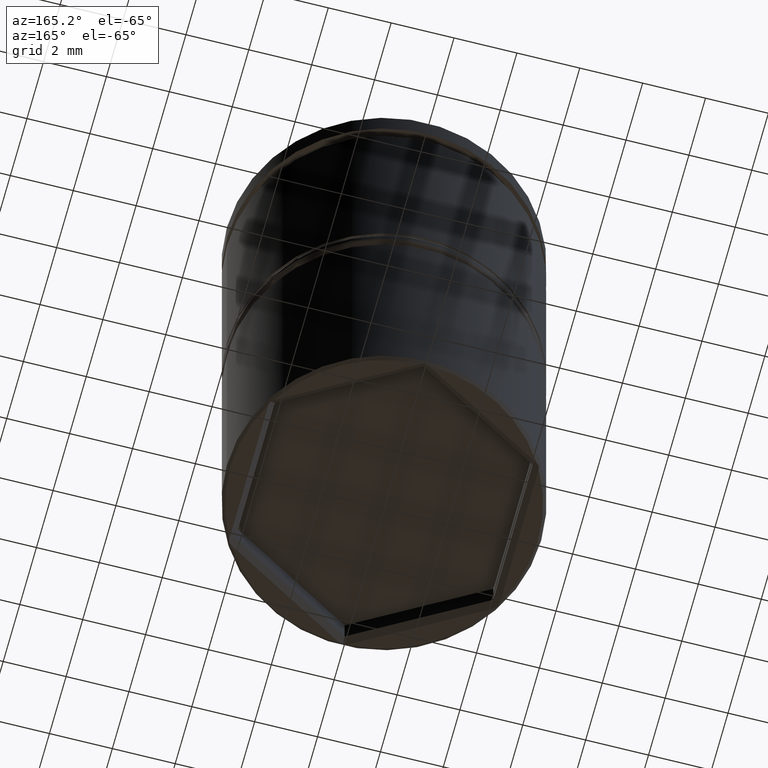
[diagram: clean part render]
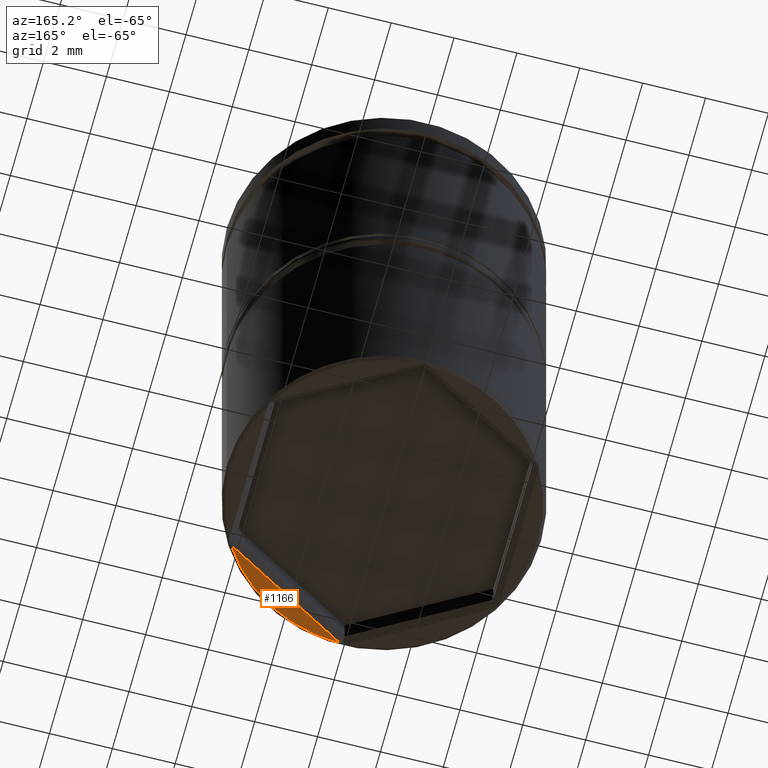
[diagram: same view with one face highlighted and labeled with its STEP entity id]
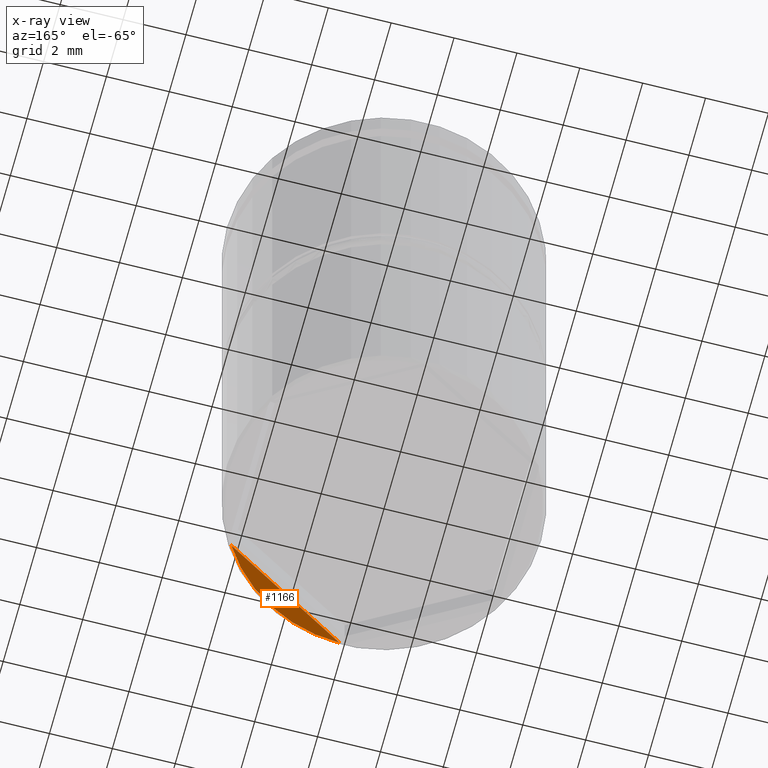
[diagram: x-ray of the same camera — body ghosted, the highlighted face saturated]
A machine part, auxiliary view. The second image highlights one B-rep face of the part: STEP entity #1166.
The next image is the same camera in x-ray: the body ghosted, the highlighted face saturated — about 0% of this face is hidden behind the body in this view.
In plain terms, the highlighted planar face has unit normal (0, 0, -1).
Its self-contained STEP definition (entity closure, byte-faithful):
#1 = CARTESIAN_POINT ( 'NONE',  ( 4.184698994937567917, -2.549175223826016801, -17.50000000000000000 ) ) ;
#85 = DIRECTION ( 'NONE',  ( -1.000000000000000000, 0.000000000000000000, 0.000000000000000000 ) ) ;
#89 = PLANE ( 'NONE',  #528 ) ;
#104 = VECTOR ( 'NONE', #275, 1000.000000000000000 ) ;
#275 = DIRECTION ( 'NONE',  ( 0.8660254037844387076, 0.4999999999999998890, 0.000000000000000000 ) ) ;
#285 = AXIS2_PLACEMENT_3D ( 'NONE', #1052, #750, #85 ) ;
#378 = ORIENTED_EDGE ( 'NONE', *, *, #1099, .T. ) ;
#512 = VERTEX_POINT ( 'NONE', #1 ) ;
#517 = FACE_OUTER_BOUND ( 'NONE', #956, .T. ) ;
#528 = AXIS2_PLACEMENT_3D ( 'NONE', #1368, #1259, #530 ) ;
#530 = DIRECTION ( 'NONE',  ( -1.000000000000000000, 0.000000000000000000, -0.000000000000000000 ) ) ;
#585 = CARTESIAN_POINT ( 'NONE',  ( 0.1153010050624278526, -4.898643248720151000, -17.50000000000000000 ) ) ;
#720 = LINE ( 'NONE', #1019, #104 ) ;
#750 = DIRECTION ( 'NONE',  ( 0.000000000000000000, 0.000000000000000000, -1.000000000000000000 ) ) ;
#956 = EDGE_LOOP ( 'NONE', ( #1234, #378 ) ) ;
#1019 = CARTESIAN_POINT ( 'NONE',  ( 4.199999999999993960, -2.540341184434352861, -17.50000000000000000 ) ) ;
#1052 = CARTESIAN_POINT ( 'NONE',  ( 0.000000000000000000, 0.000000000000000000, -17.50000000000000000 ) ) ;
#1099 = EDGE_CURVE ( 'NONE', #1100, #512, #720, .T. ) ;
#1100 = VERTEX_POINT ( 'NONE', #585 ) ;
#1166 = ADVANCED_FACE ( 'NONE', ( #517 ), #89, .T. ) ;
#1234 = ORIENTED_EDGE ( 'NONE', *, *, #1282, .T. ) ;
#1259 = DIRECTION ( 'NONE',  ( 0.000000000000000000, 0.000000000000000000, -1.000000000000000000 ) ) ;
#1282 = EDGE_CURVE ( 'NONE', #512, #1100, #1384, .T. ) ;
#1368 = CARTESIAN_POINT ( 'NONE',  ( 0.000000000000000000, 5.000000000000000000, -17.50000000000000000 ) ) ;
#1384 = CIRCLE ( 'NONE', #285, 4.899999999999991473 ) ;